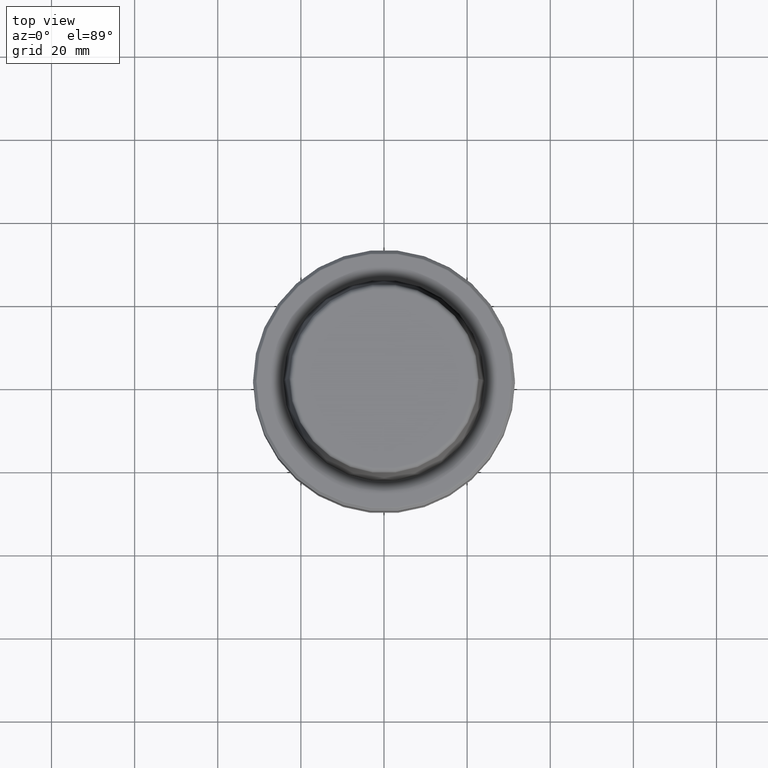
[diagram: clean part render]
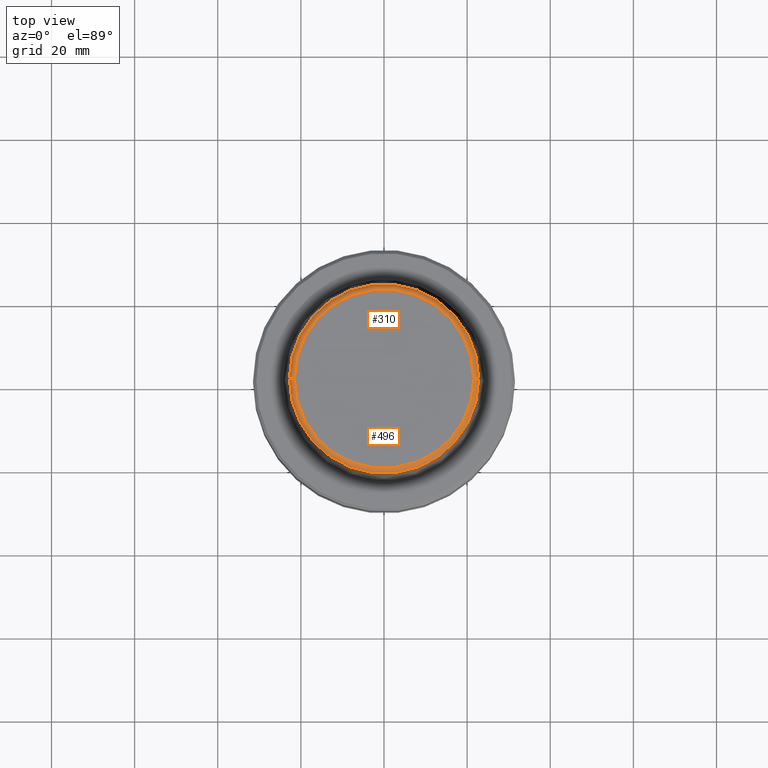
[diagram: same view with one multi-face feature highlighted, each face labeled with its STEP entity id]
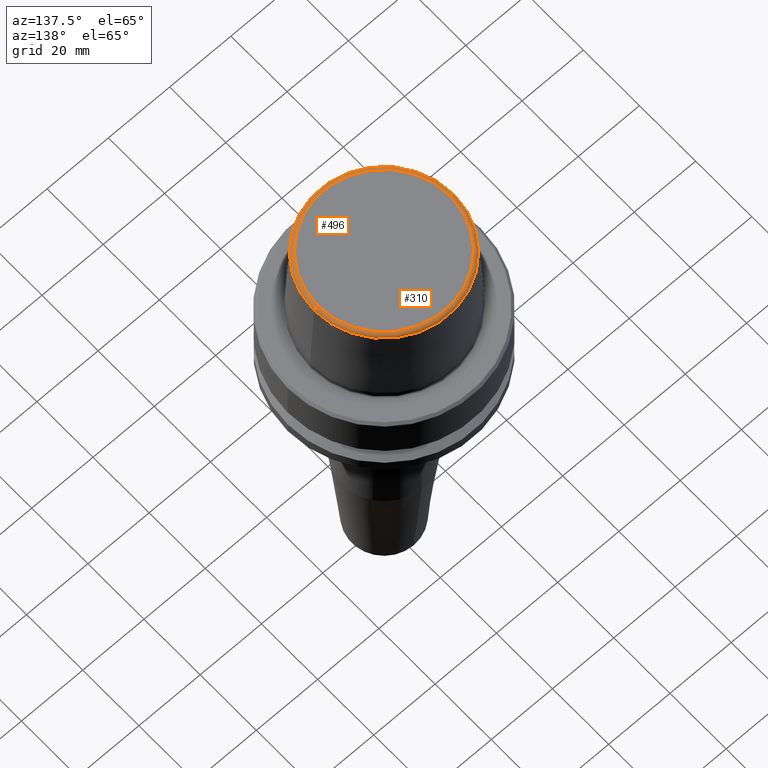
[diagram: same view with one multi-face feature highlighted, each face labeled with its STEP entity id]
A machine part, top view. The highlighted faces form ONE feature: a constant-radius fillet chain: 2 tangent blend faces with common blend radius 1.2 mm. The faces share edges in the B-rep.
A second angle (auxiliary view) of the same feature is appended — it is thin or edge-on in the first view.
Their STEP definitions:
[1] entity #310 (Torus):
#3 = VERTEX_POINT ( 'NONE', #909 ) ;
#27 = CARTESIAN_POINT ( 'NONE',  ( -22.77957961851797100, 0.0000000000000000000, 30.76004333261571900 ) ) ;
#59 = AXIS2_PLACEMENT_3D ( 'NONE', #1102, #507, #1195 ) ;
#91 = CARTESIAN_POINT ( 'NONE',  ( 0.0000000000000000000, 0.0000000000000000000, 30.76004333261571900 ) ) ;
#180 = VERTEX_POINT ( 'NONE', #27 ) ;
#188 = DIRECTION ( 'NONE',  ( -0.0000000000000000000, -0.0000000000000000000, 1.000000000000000000 ) ) ;
#196 = DIRECTION ( 'NONE',  ( 1.000000000000000000, 0.0000000000000000000, 0.0000000000000000000 ) ) ;
#204 = DIRECTION ( 'NONE',  ( 0.0000000000000000000, -1.000000000000000000, 0.0000000000000000000 ) ) ;
#250 = TOROIDAL_SURFACE ( 'NONE', #625, 21.58108272732117100, 1.200000000000003100 ) ;
#310 = ADVANCED_FACE ( 'NONE', ( #1215 ), #250, .T. ) ;
#343 = EDGE_CURVE ( 'NONE', #1222, #180, #733, .T. ) ;
#361 = EDGE_LOOP ( 'NONE', ( #782, #655, #1131, #1128 ) ) ;
#373 = CARTESIAN_POINT ( 'NONE',  ( 0.0000000000000000000, 0.0000000000000000000, 30.69999999999999200 ) ) ;
#381 = CARTESIAN_POINT ( 'NONE',  ( -21.58108272732117100, 2.642920388414810300E-015, 30.69999999999999200 ) ) ;
#444 = EDGE_CURVE ( 'NONE', #931, #3, #1042, .T. ) ;
#477 = DIRECTION ( 'NONE',  ( -1.000000000000000000, 1.224646799147353200E-016, 0.0000000000000000000 ) ) ;
#495 = CARTESIAN_POINT ( 'NONE',  ( 22.77957961851797100, 2.876386432489616700E-015, 30.76004333261571900 ) ) ;
#507 = DIRECTION ( 'NONE',  ( -0.0000000000000000000, -0.0000000000000000000, 1.000000000000000000 ) ) ;
#534 = AXIS2_PLACEMENT_3D ( 'NONE', #778, #204, #887 ) ;
#625 = AXIS2_PLACEMENT_3D ( 'NONE', #373, #188, #1061 ) ;
#655 = ORIENTED_EDGE ( 'NONE', *, *, #1051, .T. ) ;
#722 = AXIS2_PLACEMENT_3D ( 'NONE', #381, #1071, #477 ) ;
#733 = CIRCLE ( 'NONE', #793, 22.77957961851797100 ) ;
#769 = DIRECTION ( 'NONE',  ( -0.0000000000000000000, -0.0000000000000000000, 1.000000000000000000 ) ) ;
#778 = CARTESIAN_POINT ( 'NONE',  ( 21.58108272732117100, 0.0000000000000000000, 30.69999999999999200 ) ) ;
#782 = ORIENTED_EDGE ( 'NONE', *, *, #343, .T. ) ;
#793 = AXIS2_PLACEMENT_3D ( 'NONE', #91, #769, #196 ) ;
#887 = DIRECTION ( 'NONE',  ( 0.0000000000000000000, 0.0000000000000000000, -1.000000000000000000 ) ) ;
#909 = CARTESIAN_POINT ( 'NONE',  ( -21.58108272732117100, 2.716307157494421400E-015, 31.89999999999999900 ) ) ;
#931 = VERTEX_POINT ( 'NONE', #970 ) ;
#962 = EDGE_CURVE ( 'NONE', #1222, #931, #1123, .T. ) ;
#970 = CARTESIAN_POINT ( 'NONE',  ( 21.58108272732117100, 0.0000000000000000000, 31.89999999999999900 ) ) ;
#1026 = CIRCLE ( 'NONE', #722, 1.200000000000003100 ) ;
#1042 = CIRCLE ( 'NONE', #59, 21.58108272732117100 ) ;
#1051 = EDGE_CURVE ( 'NONE', #180, #3, #1026, .T. ) ;
#1061 = DIRECTION ( 'NONE',  ( 1.000000000000000000, 0.0000000000000000000, 0.0000000000000000000 ) ) ;
#1071 = DIRECTION ( 'NONE',  ( 1.224646799147353200E-016, 1.000000000000000000, 0.0000000000000000000 ) ) ;
#1102 = CARTESIAN_POINT ( 'NONE',  ( 0.0000000000000000000, 0.0000000000000000000, 31.89999999999999900 ) ) ;
#1123 = CIRCLE ( 'NONE', #534, 1.200000000000003100 ) ;
#1128 = ORIENTED_EDGE ( 'NONE', *, *, #962, .F. ) ;
#1131 = ORIENTED_EDGE ( 'NONE', *, *, #444, .F. ) ;
#1195 = DIRECTION ( 'NONE',  ( 1.000000000000000000, 0.0000000000000000000, 0.0000000000000000000 ) ) ;
#1215 = FACE_OUTER_BOUND ( 'NONE', #361, .T. ) ;
#1222 = VERTEX_POINT ( 'NONE', #495 ) ;
[2] entity #496 (Torus):
#3 = VERTEX_POINT ( 'NONE', #909 ) ;
#7 = EDGE_CURVE ( 'NONE', #180, #1222, #1233, .T. ) ;
#27 = CARTESIAN_POINT ( 'NONE',  ( -22.77957961851797100, 0.0000000000000000000, 30.76004333261571900 ) ) ;
#180 = VERTEX_POINT ( 'NONE', #27 ) ;
#185 = CIRCLE ( 'NONE', #682, 21.58108272732117100 ) ;
#194 = AXIS2_PLACEMENT_3D ( 'NONE', #1005, #596, #1201 ) ;
#204 = DIRECTION ( 'NONE',  ( 0.0000000000000000000, -1.000000000000000000, 0.0000000000000000000 ) ) ;
#243 = EDGE_CURVE ( 'NONE', #3, #931, #185, .T. ) ;
#258 = FACE_OUTER_BOUND ( 'NONE', #450, .T. ) ;
#326 = CARTESIAN_POINT ( 'NONE',  ( 0.0000000000000000000, 0.0000000000000000000, 31.89999999999999900 ) ) ;
#381 = CARTESIAN_POINT ( 'NONE',  ( -21.58108272732117100, 2.642920388414810300E-015, 30.69999999999999200 ) ) ;
#420 = CARTESIAN_POINT ( 'NONE',  ( 0.0000000000000000000, 0.0000000000000000000, 30.76004333261571900 ) ) ;
#437 = DIRECTION ( 'NONE',  ( 1.000000000000000000, 0.0000000000000000000, 0.0000000000000000000 ) ) ;
#450 = EDGE_LOOP ( 'NONE', ( #528, #478, #618, #671 ) ) ;
#477 = DIRECTION ( 'NONE',  ( -1.000000000000000000, 1.224646799147353200E-016, 0.0000000000000000000 ) ) ;
#478 = ORIENTED_EDGE ( 'NONE', *, *, #7, .T. ) ;
#495 = CARTESIAN_POINT ( 'NONE',  ( 22.77957961851797100, 2.876386432489616700E-015, 30.76004333261571900 ) ) ;
#496 = ADVANCED_FACE ( 'NONE', ( #258 ), #780, .T. ) ;
#509 = DIRECTION ( 'NONE',  ( 1.000000000000000000, 0.0000000000000000000, 0.0000000000000000000 ) ) ;
#528 = ORIENTED_EDGE ( 'NONE', *, *, #1051, .F. ) ;
#534 = AXIS2_PLACEMENT_3D ( 'NONE', #778, #204, #887 ) ;
#596 = DIRECTION ( 'NONE',  ( -0.0000000000000000000, -0.0000000000000000000, 1.000000000000000000 ) ) ;
#618 = ORIENTED_EDGE ( 'NONE', *, *, #962, .T. ) ;
#671 = ORIENTED_EDGE ( 'NONE', *, *, #243, .F. ) ;
#682 = AXIS2_PLACEMENT_3D ( 'NONE', #326, #1022, #437 ) ;
#722 = AXIS2_PLACEMENT_3D ( 'NONE', #381, #1071, #477 ) ;
#778 = CARTESIAN_POINT ( 'NONE',  ( 21.58108272732117100, 0.0000000000000000000, 30.69999999999999200 ) ) ;
#780 = TOROIDAL_SURFACE ( 'NONE', #194, 21.58108272732117100, 1.200000000000003100 ) ;
#887 = DIRECTION ( 'NONE',  ( 0.0000000000000000000, 0.0000000000000000000, -1.000000000000000000 ) ) ;
#909 = CARTESIAN_POINT ( 'NONE',  ( -21.58108272732117100, 2.716307157494421400E-015, 31.89999999999999900 ) ) ;
#931 = VERTEX_POINT ( 'NONE', #970 ) ;
#962 = EDGE_CURVE ( 'NONE', #1222, #931, #1123, .T. ) ;
#970 = CARTESIAN_POINT ( 'NONE',  ( 21.58108272732117100, 0.0000000000000000000, 31.89999999999999900 ) ) ;
#1005 = CARTESIAN_POINT ( 'NONE',  ( 0.0000000000000000000, 0.0000000000000000000, 30.69999999999999200 ) ) ;
#1022 = DIRECTION ( 'NONE',  ( -0.0000000000000000000, -0.0000000000000000000, 1.000000000000000000 ) ) ;
#1026 = CIRCLE ( 'NONE', #722, 1.200000000000003100 ) ;
#1051 = EDGE_CURVE ( 'NONE', #180, #3, #1026, .T. ) ;
#1071 = DIRECTION ( 'NONE',  ( 1.224646799147353200E-016, 1.000000000000000000, 0.0000000000000000000 ) ) ;
#1106 = DIRECTION ( 'NONE',  ( -0.0000000000000000000, -0.0000000000000000000, 1.000000000000000000 ) ) ;
#1121 = AXIS2_PLACEMENT_3D ( 'NONE', #420, #1106, #509 ) ;
#1123 = CIRCLE ( 'NONE', #534, 1.200000000000003100 ) ;
#1201 = DIRECTION ( 'NONE',  ( 1.000000000000000000, 0.0000000000000000000, 0.0000000000000000000 ) ) ;
#1222 = VERTEX_POINT ( 'NONE', #495 ) ;
#1233 = CIRCLE ( 'NONE', #1121, 22.77957961851797100 ) ;